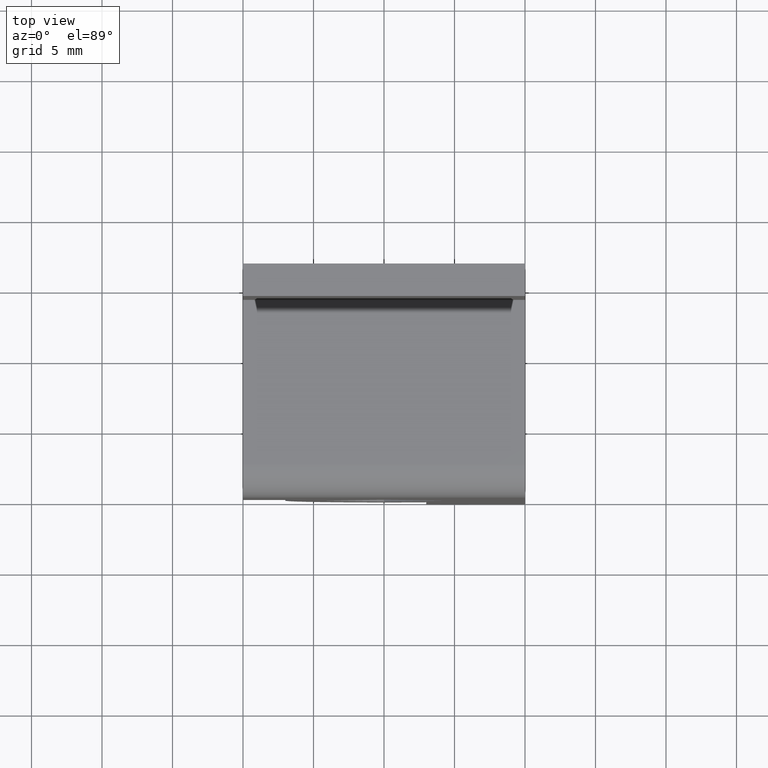
[diagram: clean part render]
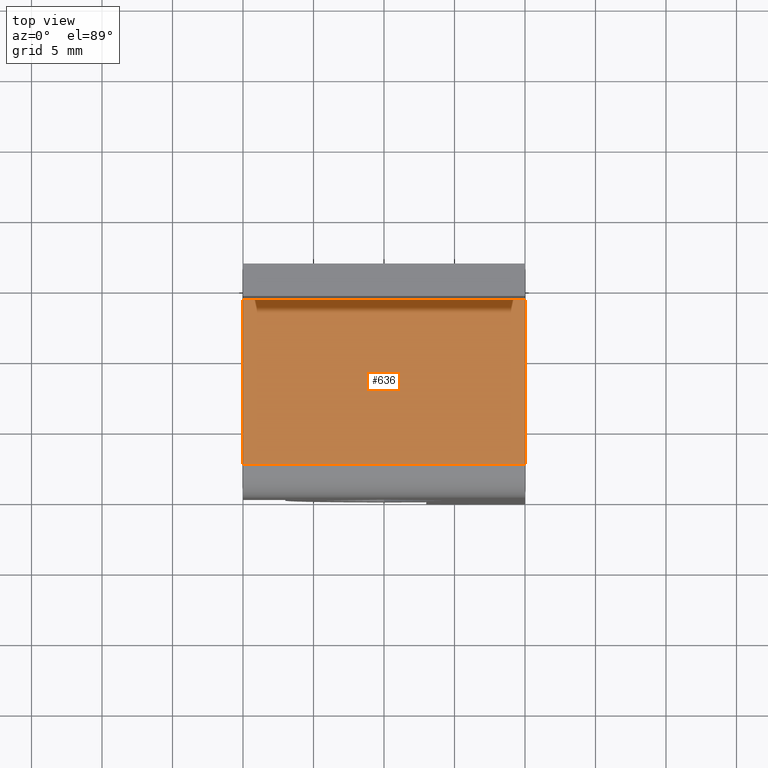
[diagram: same view with one face highlighted and labeled with its STEP entity id]
A machine part, top view. The second image highlights one B-rep face of the part: STEP entity #636.
In plain terms, the highlighted face is a freeform B-spline surface patch.
Its self-contained STEP definition (entity closure, byte-faithful):
#301=CARTESIAN_POINT('',(-10.000000000000121,2.300003000000000,14.300002999999901));
#302=VERTEX_POINT('',#301);
#318=CARTESIAN_POINT('',(-10.000000000000121,14.0,14.300002999999901));
#319=VERTEX_POINT('',#318);
#320=CARTESIAN_POINT('',(-10.000000000000121,14.0,14.300002999999901));
#321=CARTESIAN_POINT('',(-10.000000000000121,2.300003000000000,14.300002999999901));
#322=QUASI_UNIFORM_CURVE('',1,(#320,#321),.UNSPECIFIED.,.F.,.U.);
#323=EDGE_CURVE('',#319,#302,#322,.T.);
#385=CARTESIAN_POINT('',(10.0,14.0,14.300002999999901));
#386=VERTEX_POINT('',#385);
#392=CARTESIAN_POINT('',(10.0,2.300003000000000,14.300002999999901));
#393=VERTEX_POINT('',#392);
#394=CARTESIAN_POINT('',(10.0,14.0,14.300002999999901));
#395=CARTESIAN_POINT('',(10.0,2.300003000000000,14.300002999999901));
#396=QUASI_UNIFORM_CURVE('',1,(#394,#395),.UNSPECIFIED.,.F.,.U.);
#397=EDGE_CURVE('',#386,#393,#396,.T.);
#613=CARTESIAN_POINT('',(10.0,2.300003000000000,14.300002999999901));
#614=CARTESIAN_POINT('',(-10.000000000000121,2.300003000000000,14.300002999999901));
#615=QUASI_UNIFORM_CURVE('',1,(#613,#614),.UNSPECIFIED.,.F.,.U.);
#616=EDGE_CURVE('',#393,#302,#615,.T.);
#621=CARTESIAN_POINT('',(10.998999961236130,1.715588172526864,14.300002999999901));
#622=CARTESIAN_POINT('',(-10.999000497678050,1.715588172526864,14.300002999999901));
#623=CARTESIAN_POINT('',(10.998999961236130,14.584415141291510,14.300002999999901));
#624=CARTESIAN_POINT('',(-10.999000497678050,14.584415141291510,14.300002999999901));
#625=B_SPLINE_SURFACE_WITH_KNOTS('',1,1,((#621,#623),(#622,#624)),.UNSPECIFIED.,.F.,.F.,.U.,(2,2),(2,2),(0.0,21.998000458914181),(0.0,12.868826968764649),.UNSPECIFIED.);
#626=ORIENTED_EDGE('',*,*,#323,.T.);
#627=ORIENTED_EDGE('',*,*,#616,.F.);
#628=ORIENTED_EDGE('',*,*,#397,.F.);
#629=CARTESIAN_POINT('',(10.0,14.0,14.300002999999901));
#630=CARTESIAN_POINT('',(-10.000000000000121,14.0,14.300002999999901));
#631=QUASI_UNIFORM_CURVE('',1,(#629,#630),.UNSPECIFIED.,.F.,.U.);
#632=EDGE_CURVE('',#386,#319,#631,.T.);
#633=ORIENTED_EDGE('',*,*,#632,.T.);
#634=EDGE_LOOP('',(#626,#627,#628,#633));
#635=FACE_OUTER_BOUND('',#634,.T.);
#636=ADVANCED_FACE('',(#635),#625,.F.);